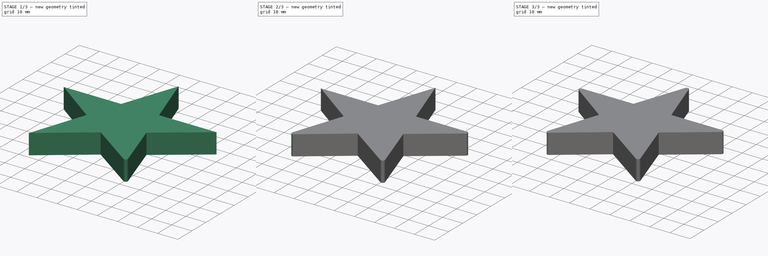
[diagram: build sequence overview — one tinted view per stage of 3, left to right]
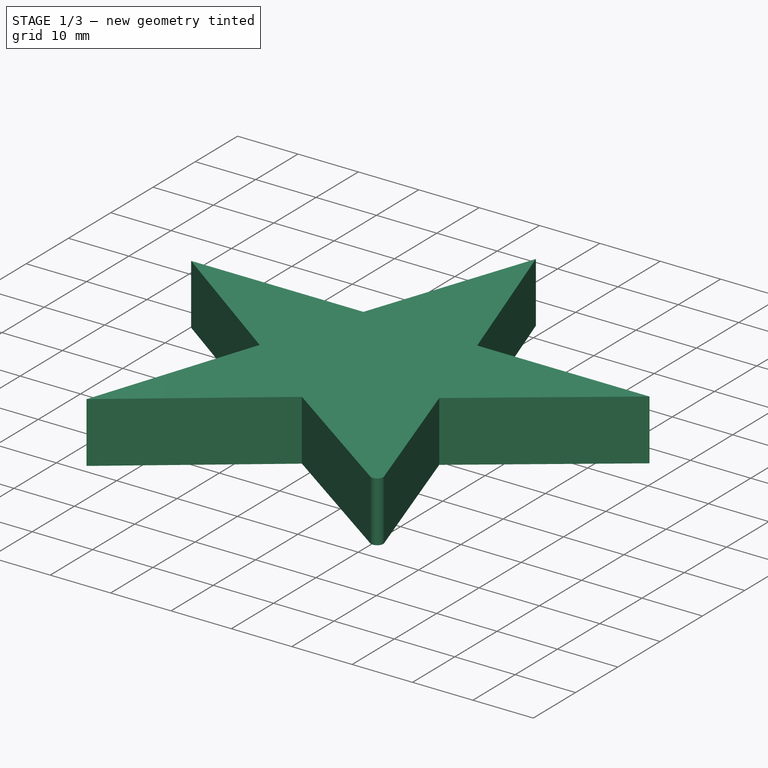
[diagram: stage 1 of 3 — iso view after this stage's code; geometry added in this stage tinted green]
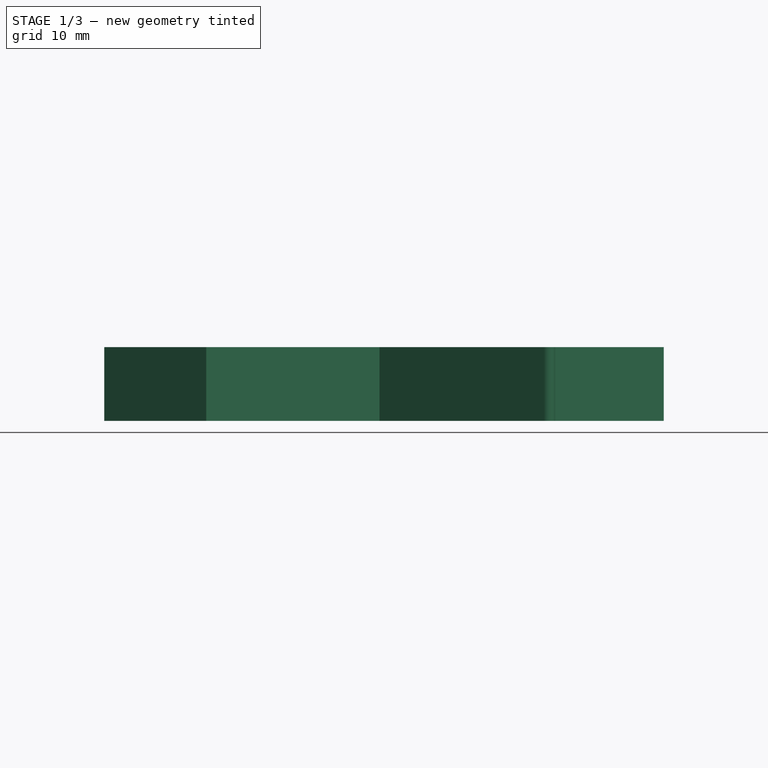
[diagram: stage 1 of 3 — front view after this stage's code; geometry added in this stage tinted green]
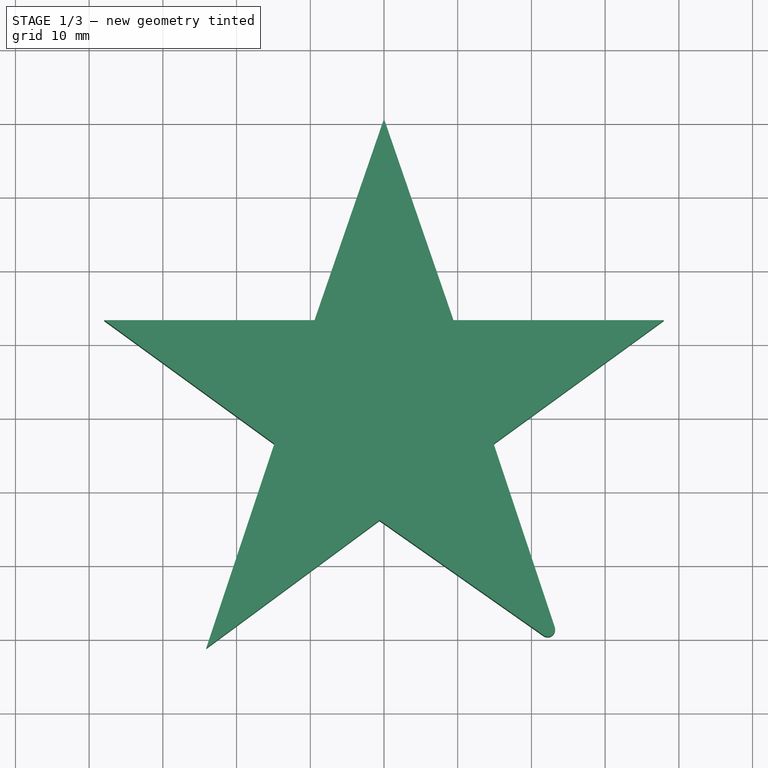
[diagram: stage 1 of 3 — top view after this stage's code; geometry added in this stage tinted green]
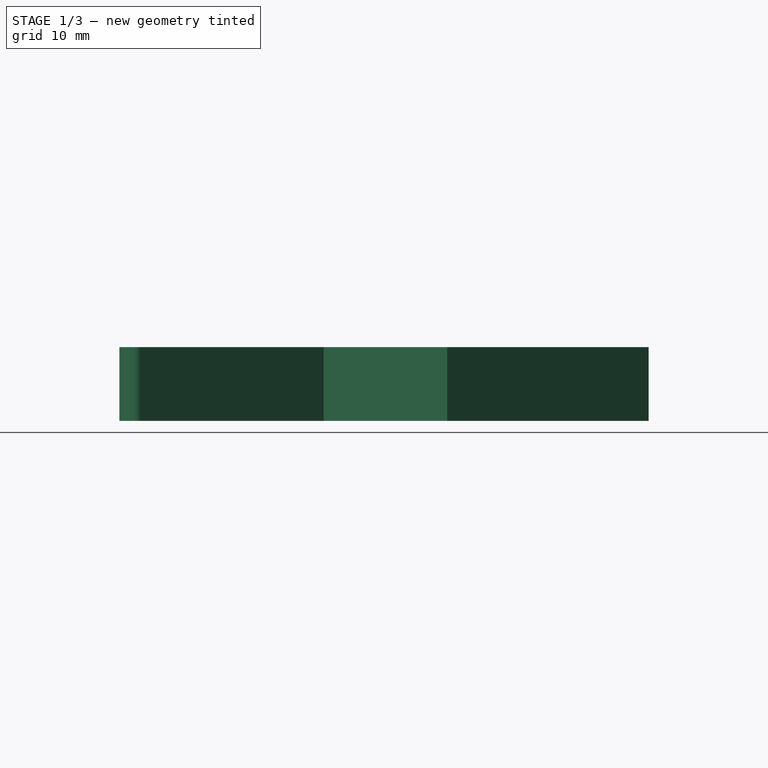
[diagram: stage 1 of 3 — right view after this stage's code; geometry added in this stage tinted green]
FCSTD DOCUMENT  (FreeCAD 0.21R33694 (Git))
Label: OJT1_T20R03_estel
License: All rights reserved
LicenseURL: https://en.wikipedia.org/wiki/All_rights_reserved
objects: Part::Fillet×5, Sketcher::SketchObject×1, PartDesign::Pad×1, PartDesign::Body×1
note: 9 computed .brp shape members not serialized (recipe doc carries the construction recipe); baked Part::Feature solids carry a one-line shape summary decoded from their .brp

FEATURE [Sketcher::SketchObject] Sketch
  FullyConstrained = false
  MapMode = 5
  Support = -> [XY_Plane]
  sketch-geometry (16):
    g0: LineSegment StartX=-9.42392 StartY=13.2563 StartZ=0 EndX=0 EndY=40.5773 EndZ=0
    g1: LineSegment StartX=0 StartY=40.5773 StartZ=0 EndX=9.42392 EndY=13.2563 EndZ=0
    g2: LineSegment StartX=9.42392 StartY=13.2563 StartZ=0 EndX=37.9556 EndY=13.2563 EndZ=0
    g3: LineSegment StartX=37.9556 StartY=13.2563 StartZ=0 EndX=14.873 EndY=-3.51424 EndZ=0
    g4: LineSegment StartX=14.873 StartY=-3.51424 StartZ=0 EndX=24.1186 EndY=-31.2397 EndZ=0
    g5: LineSegment StartX=24.1186 StartY=-31.2397 StartZ=0 EndX=-0.607143 EndY=-13.879 EndZ=0
    g6: LineSegment StartX=-0.607143 StartY=-13.879 StartZ=0 EndX=-24.1186 EndY=-31.2397 EndZ=0
    g7: LineSegment StartX=-24.1186 StartY=-31.2397 StartZ=0 EndX=-14.873 EndY=-3.51424 EndZ=0
    g8: LineSegment StartX=-14.873 StartY=-3.51424 StartZ=0 EndX=-37.9556 EndY=13.2563 EndZ=0
    g9: LineSegment StartX=-37.9556 StartY=13.2563 StartZ=0 EndX=-9.42392 EndY=13.2563 EndZ=0
    g10: LineSegment StartX=0 StartY=0.577304 StartZ=0 EndX=0 EndY=40.5773 EndZ=0
    g11: LineSegment StartX=-0.607143 StartY=-13.879 StartZ=0 EndX=-0.607143 EndY=1.12102 EndZ=0
    g12: LineSegment StartX=-0.607143 StartY=1.12102 StartZ=0 EndX=-9.42392 EndY=13.2563 EndZ=0
    g13: LineSegment StartX=-0.607143 StartY=1.12102 StartZ=0 EndX=-37.9556 EndY=13.2563 EndZ=0
    g14: LineSegment StartX=-0.607143 StartY=1.12102 StartZ=0 EndX=-14.873 EndY=-3.51424 EndZ=0
    g15: LineSegment StartX=-0.607143 StartY=1.12102 StartZ=0 EndX=-24.1186 EndY=-31.2397 EndZ=0
  constraints (37):
    c: PointOnObject(g0,g-2)
    c: Coincident(g0,g1)
    c: Coincident(g1,g2)
    c: Horizontal(g2)
    c: Coincident(g2,g3)
    c: Coincident(g3,g4)
    c: Coincident(g4,g5)
    c: Coincident(g5,g6)
    c: Coincident(g6,g7)
    c: Coincident(g7,g8)
    c: Coincident(g8,g9)
    c: Coincident(g9,g0)
    c: Symmetric(g0,g1,g-2)
    c: Symmetric(g7,g3,g-2)
    c: Symmetric(g4,g6,g-2)
    c: Symmetric(g2,g8,g-2)
    c: Vertical(g10)
    c: Coincident(g10,g0)
    c: DistanceY(g10,g0) = 40
    c: Vertical(g11)
    c: Coincident(g11,g5)
    c: DistanceY(g5,g11) = 15
    c: Coincident(g12,g11)
    c: Coincident(g12,g0)
    c: Coincident(g13,g11)
    c: Coincident(g13,g8)
    c: Coincident(g14,g11)
    c: Coincident(g14,g7)
    c: Coincident(g15,g11)
    c: Coincident(g15,g6)
    c: Equal(g10,g15)
    c: Equal(g11,g14)
    c: Equal(g14,g12)
    c: Angle(g10,g12) = 0.628319
    c: Angle(g13,g14) = 0.628319
    c: Angle(g10,g13) = 1.25664
    c: Angle(g13,g15) = 1.25664
FEATURE [PartDesign::Pad] Pad
  Direction = (0,0,1)
  Length = 10
  Length2 = 10
  Profile = -> Sketch
  ReferenceAxis = -> Sketch [N_Axis]
  Type = 0
FEATURE [PartDesign::Body] Body
  Group = -> [Sketch,Pad]
  Origin = -> Origin
  Tip = -> Pad
FEATURE [Part::Fillet] Fillet
  Base = -> Pad
  Edges = 1 edges r=1: [Edge14]
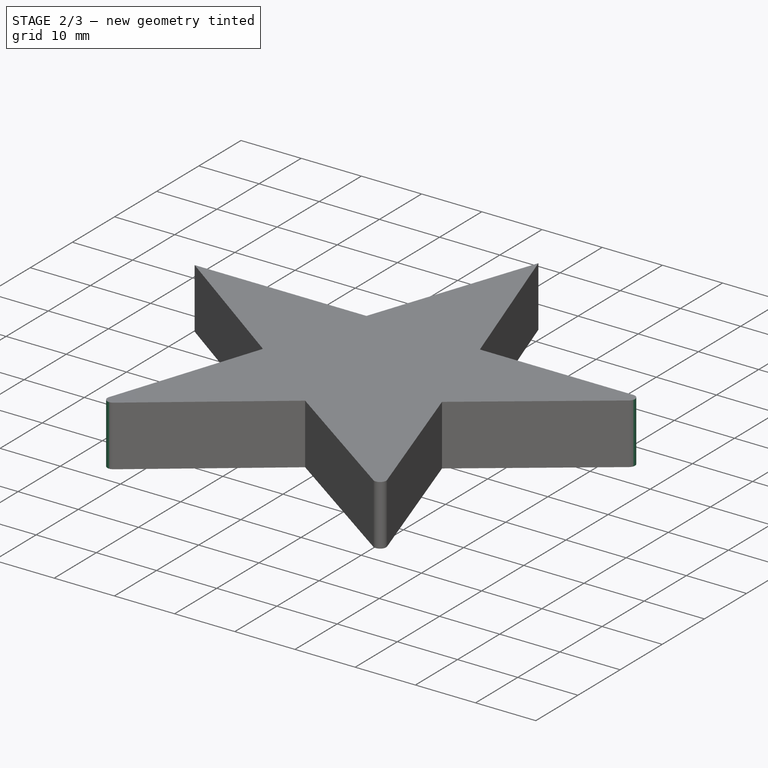
[diagram: stage 2 of 3 — iso view after this stage's code; geometry added in this stage tinted green]
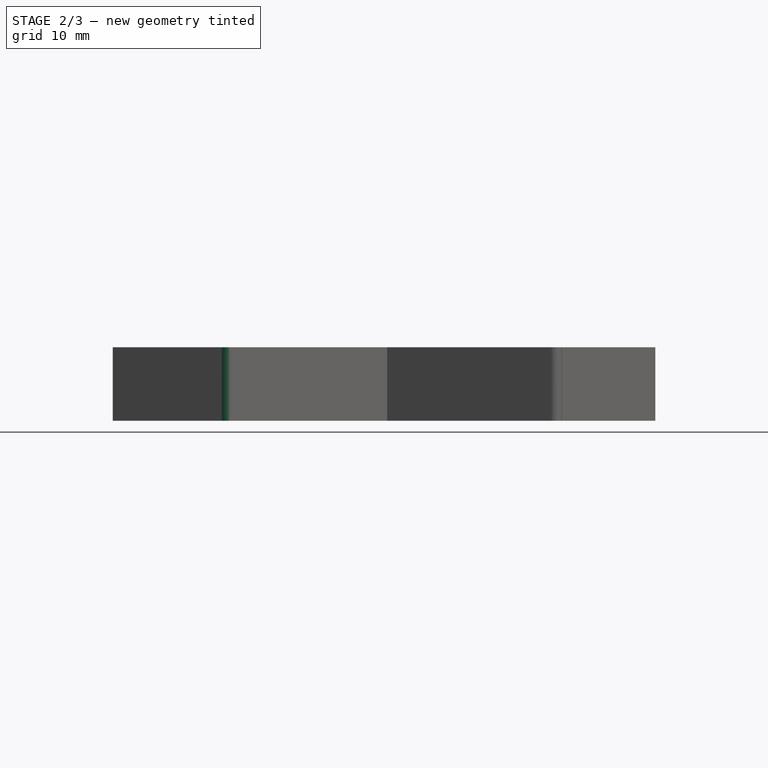
[diagram: stage 2 of 3 — front view after this stage's code; geometry added in this stage tinted green]
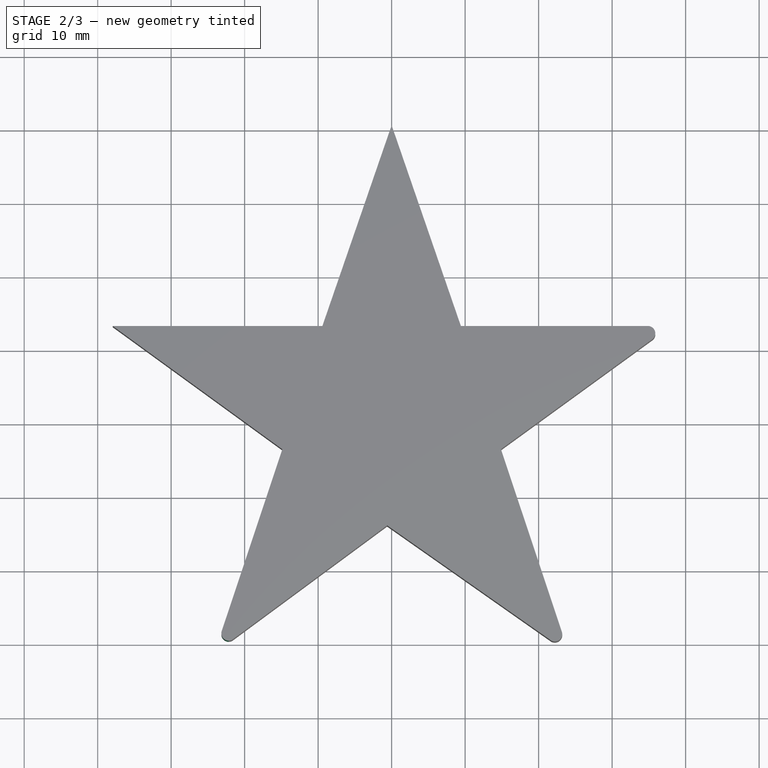
[diagram: stage 2 of 3 — top view after this stage's code; geometry added in this stage tinted green]
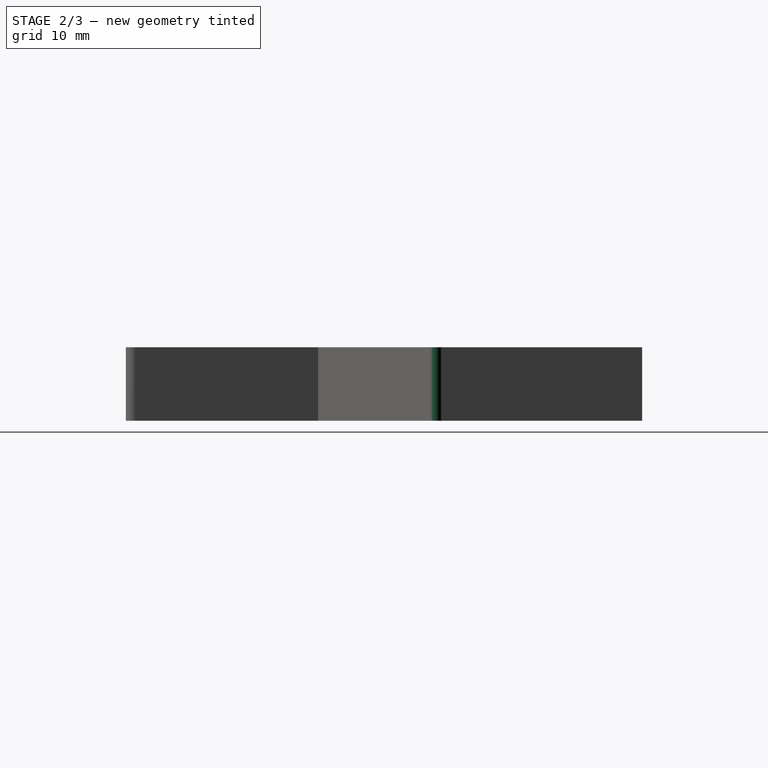
[diagram: stage 2 of 3 — right view after this stage's code; geometry added in this stage tinted green]
FEATURE [Part::Fillet] Fillet001
  Base = -> Fillet
  Edges = 1 edges r=1: [Edge17]
FEATURE [Part::Fillet] Fillet002
  Base = -> Fillet001
  Edges = 1 edges r=1: [Edge31]
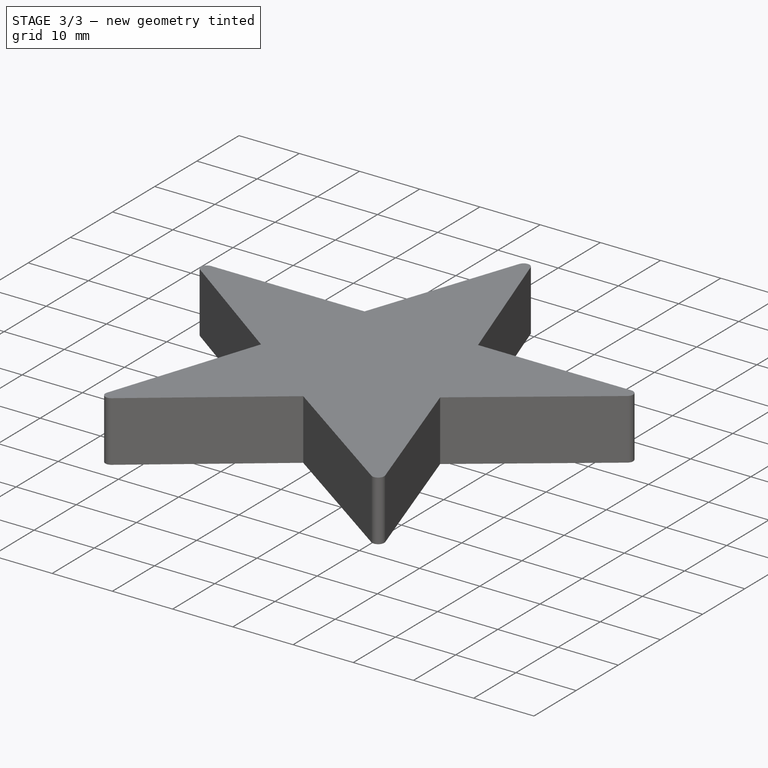
[diagram: stage 3 of 3 — iso view after this stage's code; geometry added in this stage tinted green]
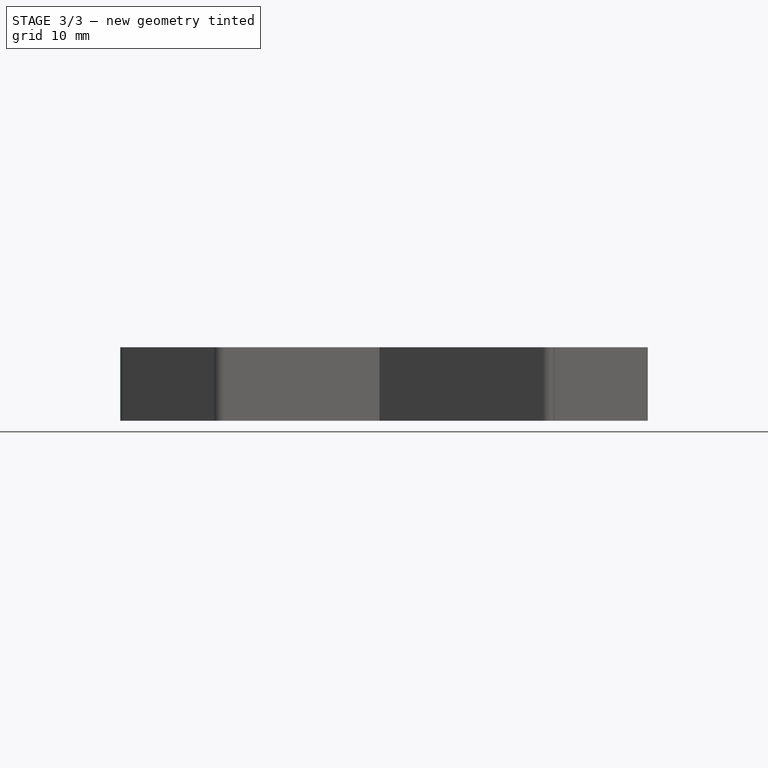
[diagram: stage 3 of 3 — front view after this stage's code; geometry added in this stage tinted green]
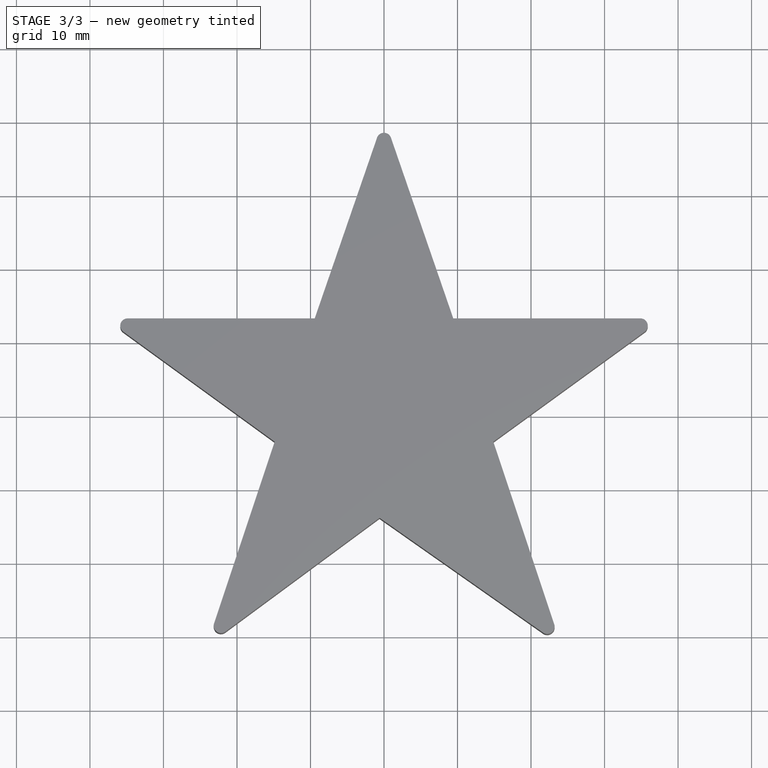
[diagram: stage 3 of 3 — top view after this stage's code; geometry added in this stage tinted green]
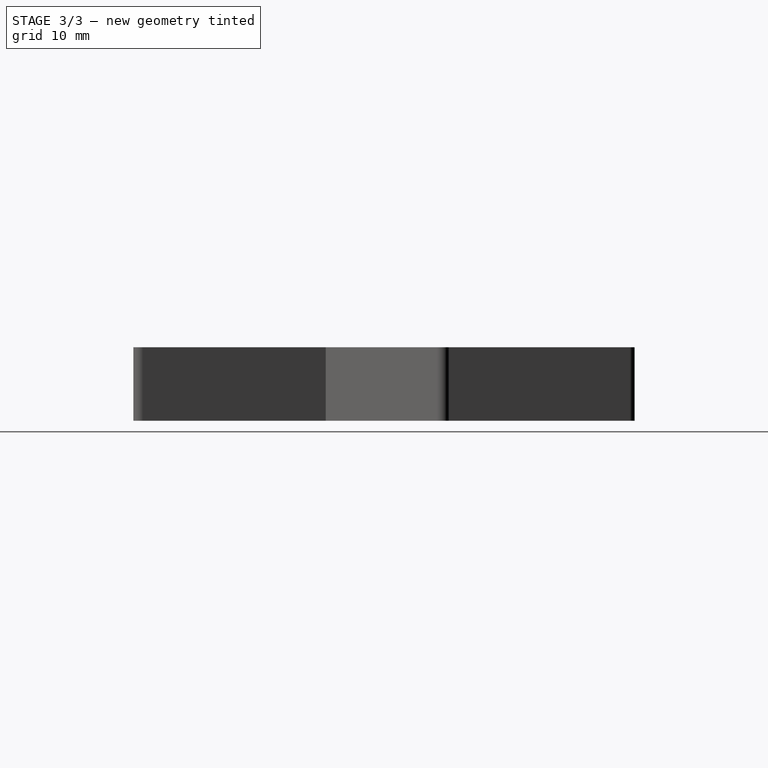
[diagram: stage 3 of 3 — right view after this stage's code; geometry added in this stage tinted green]
FEATURE [Part::Fillet] Fillet003
  Base = -> Fillet002
  Edges = 1 edges r=1: [Edge28]
FEATURE [Part::Fillet] Fillet004
  Base = -> Fillet003
  Edges = 1 edges r=1: [Edge26]
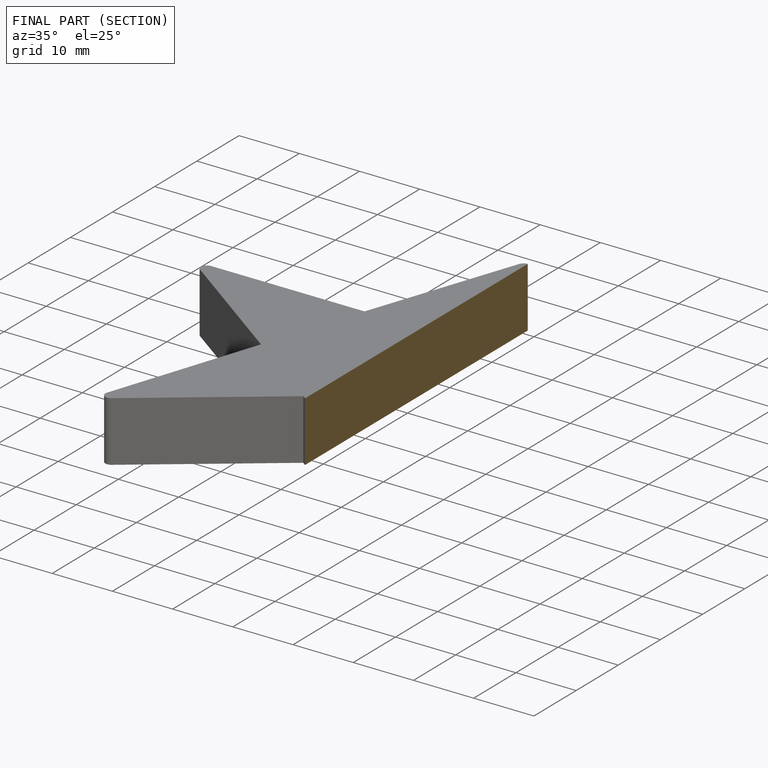
[diagram: finished part — half-section view (interior)]
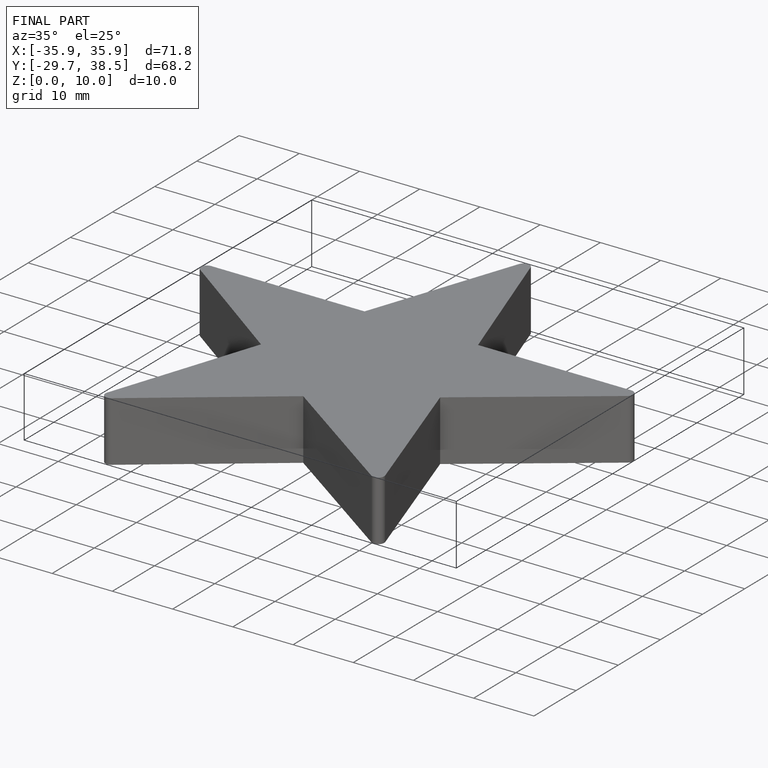
[diagram: finished part — iso view with bounding-box wireframe]
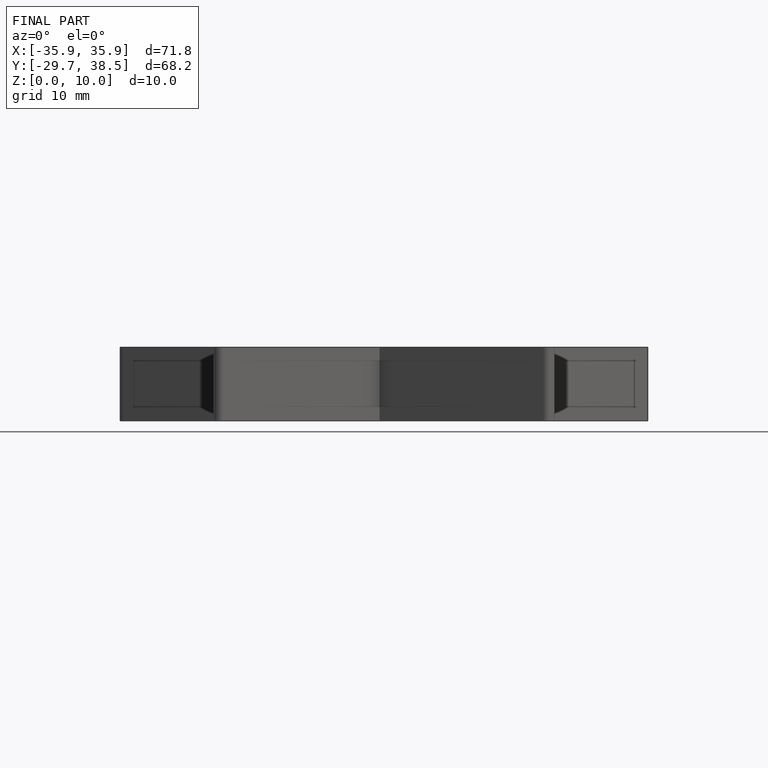
[diagram: finished part — front view with bounding-box wireframe]
